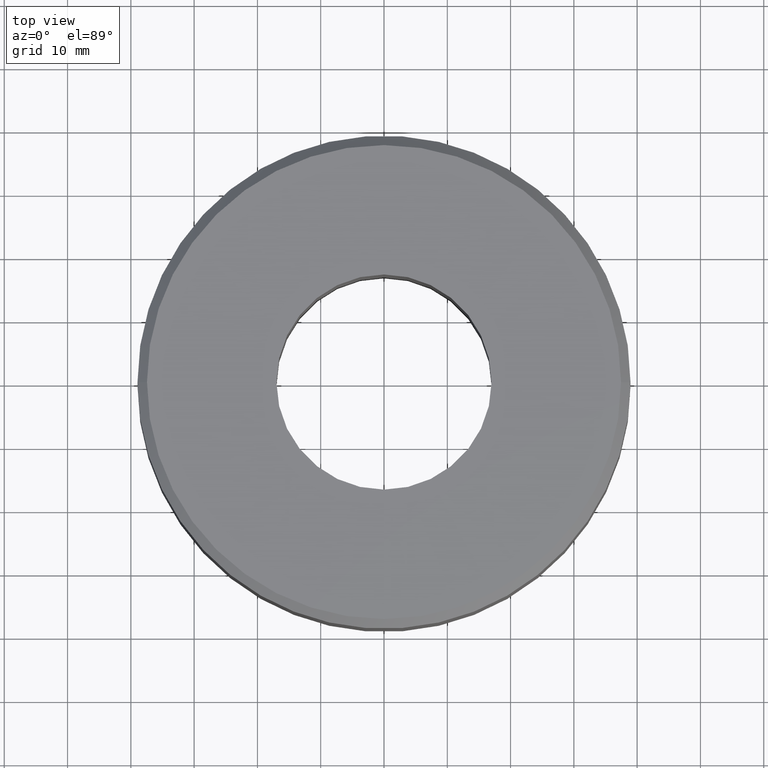
[diagram: clean part render]
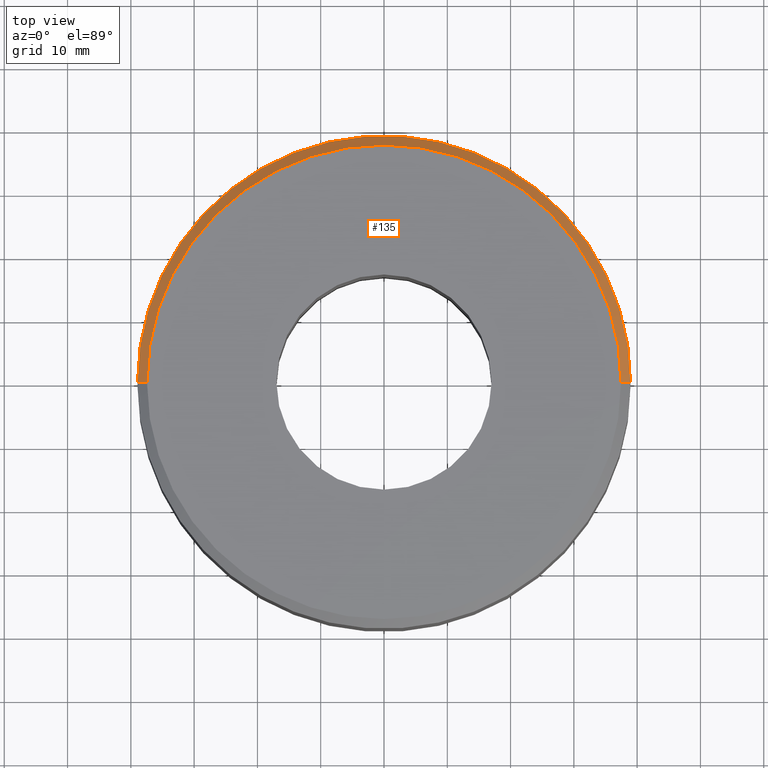
[diagram: same view with one face highlighted and labeled with its STEP entity id]
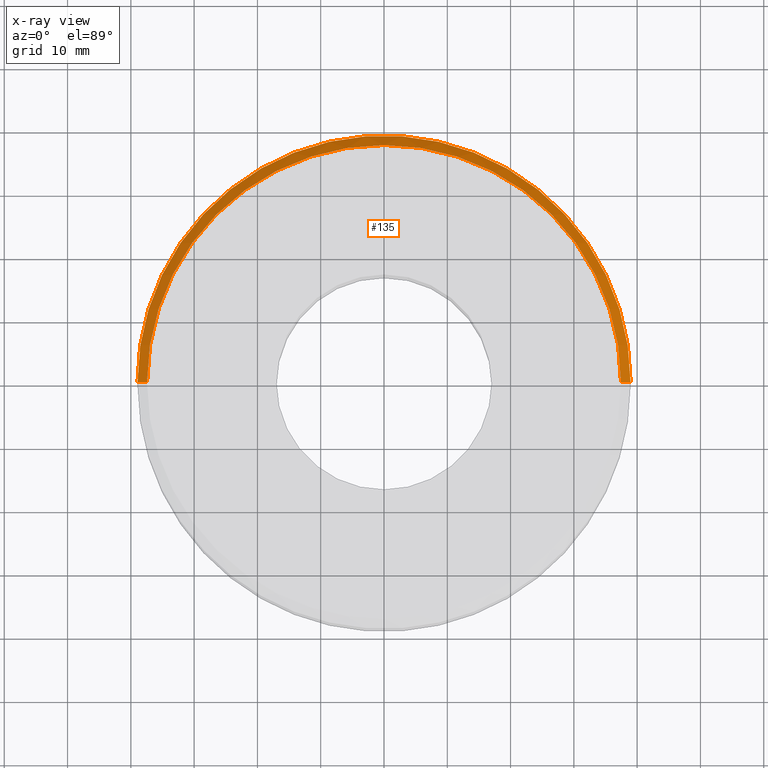
[diagram: x-ray of the same camera — body ghosted, the highlighted face saturated]
A machine part, top view. The second image highlights one B-rep face of the part: STEP entity #135.
The next image is the same camera in x-ray: the body ghosted, the highlighted face saturated — about 0% of this face is hidden behind the body in this view.
In plain terms, the highlighted conical surface has half-angle 45 deg.
Its self-contained STEP definition (entity closure, byte-faithful):
#5 = DIRECTION ( 'NONE',  ( 1.000000000000000000, 0.0000000000000000000, 0.0000000000000000000 ) ) ;
#6 = CARTESIAN_POINT ( 'NONE',  ( 0.0000000000000000000, 0.0000000000000000000, 16.20000000000000600 ) ) ;
#12 = FACE_OUTER_BOUND ( 'NONE', #77, .T. ) ;
#22 = CARTESIAN_POINT ( 'NONE',  ( 38.95000000000000300, 4.769999282678941600E-015, 16.20000000000000600 ) ) ;
#55 = ORIENTED_EDGE ( 'NONE', *, *, #246, .F. ) ;
#77 = EDGE_LOOP ( 'NONE', ( #55, #288, #120, #268 ) ) ;
#89 = AXIS2_PLACEMENT_3D ( 'NONE', #324, #173, #5 ) ;
#106 = VECTOR ( 'NONE', #141, 1000.000000000000000 ) ;
#108 = LINE ( 'NONE', #294, #106 ) ;
#116 = CIRCLE ( 'NONE', #282, 37.45000000000000300 ) ;
#120 = ORIENTED_EDGE ( 'NONE', *, *, #238, .T. ) ;
#122 = VERTEX_POINT ( 'NONE', #144 ) ;
#135 = ADVANCED_FACE ( 'NONE', ( #12 ), #240, .T. ) ;
#141 = DIRECTION ( 'NONE',  ( -0.7071067811865491300, 0.0000000000000000000, -0.7071067811865459100 ) ) ;
#142 = CARTESIAN_POINT ( 'NONE',  ( 38.95000000000000300, 4.769999282678941600E-015, 16.20000000000000600 ) ) ;
#144 = CARTESIAN_POINT ( 'NONE',  ( -38.95000000000000300, 0.0000000000000000000, 16.20000000000000600 ) ) ;
#161 = CARTESIAN_POINT ( 'NONE',  ( 0.0000000000000000000, 0.0000000000000000000, 17.69999999999999900 ) ) ;
#168 = DIRECTION ( 'NONE',  ( -1.000000000000000000, 0.0000000000000000000, 0.0000000000000000000 ) ) ;
#173 = DIRECTION ( 'NONE',  ( -0.0000000000000000000, -0.0000000000000000000, 1.000000000000000000 ) ) ;
#186 = DIRECTION ( 'NONE',  ( 1.000000000000000000, 0.0000000000000000000, 0.0000000000000000000 ) ) ;
#203 = VERTEX_POINT ( 'NONE', #207 ) ;
#207 = CARTESIAN_POINT ( 'NONE',  ( 37.45000000000000300, 4.678150772742890200E-015, 17.69999999999999900 ) ) ;
#238 = EDGE_CURVE ( 'NONE', #273, #122, #320, .T. ) ;
#240 = CONICAL_SURFACE ( 'NONE', #312, 38.95000000000000300, 0.7853981633974506100 ) ;
#242 = EDGE_CURVE ( 'NONE', #203, #273, #290, .T. ) ;
#246 = EDGE_CURVE ( 'NONE', #203, #321, #116, .T. ) ;
#265 = VECTOR ( 'NONE', #275, 1000.000000000000000 ) ;
#268 = ORIENTED_EDGE ( 'NONE', *, *, #278, .F. ) ;
#273 = VERTEX_POINT ( 'NONE', #22 ) ;
#275 = DIRECTION ( 'NONE',  ( 0.7071067811865491300, 8.659560562354952600E-017, -0.7071067811865459100 ) ) ;
#278 = EDGE_CURVE ( 'NONE', #321, #122, #108, .T. ) ;
#282 = AXIS2_PLACEMENT_3D ( 'NONE', #161, #345, #186 ) ;
#288 = ORIENTED_EDGE ( 'NONE', *, *, #242, .T. ) ;
#290 = LINE ( 'NONE', #142, #265 ) ;
#294 = CARTESIAN_POINT ( 'NONE',  ( -38.95000000000000300, 0.0000000000000000000, 16.20000000000000600 ) ) ;
#305 = DIRECTION ( 'NONE',  ( 0.0000000000000000000, 0.0000000000000000000, -1.000000000000000000 ) ) ;
#312 = AXIS2_PLACEMENT_3D ( 'NONE', #6, #305, #168 ) ;
#320 = CIRCLE ( 'NONE', #89, 38.95000000000000300 ) ;
#321 = VERTEX_POINT ( 'NONE', #323 ) ;
#323 = CARTESIAN_POINT ( 'NONE',  ( -37.45000000000000300, 0.0000000000000000000, 17.69999999999999900 ) ) ;
#324 = CARTESIAN_POINT ( 'NONE',  ( 0.0000000000000000000, 0.0000000000000000000, 16.20000000000000600 ) ) ;
#345 = DIRECTION ( 'NONE',  ( -0.0000000000000000000, -0.0000000000000000000, 1.000000000000000000 ) ) ;